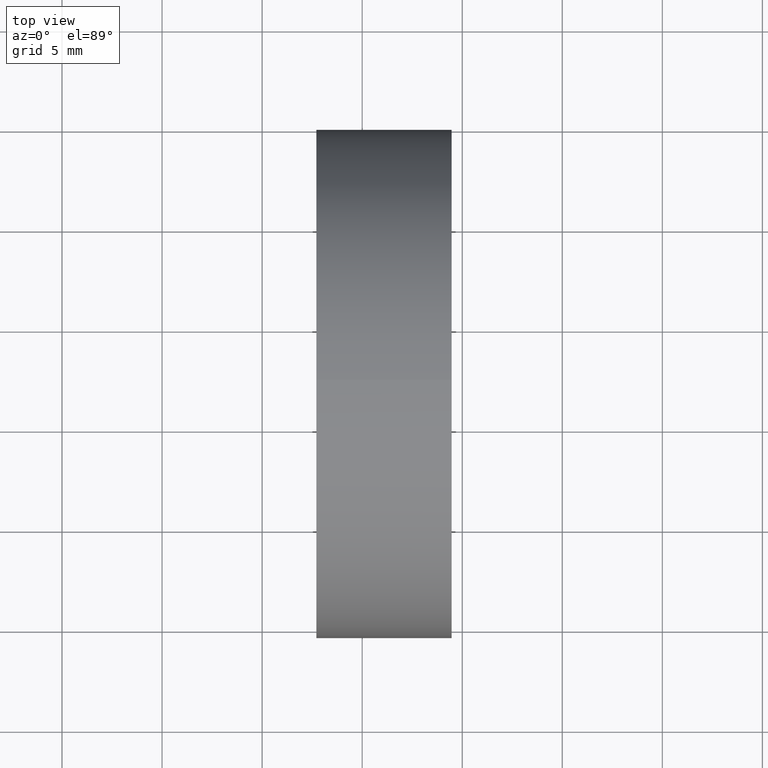
[diagram: clean part render]
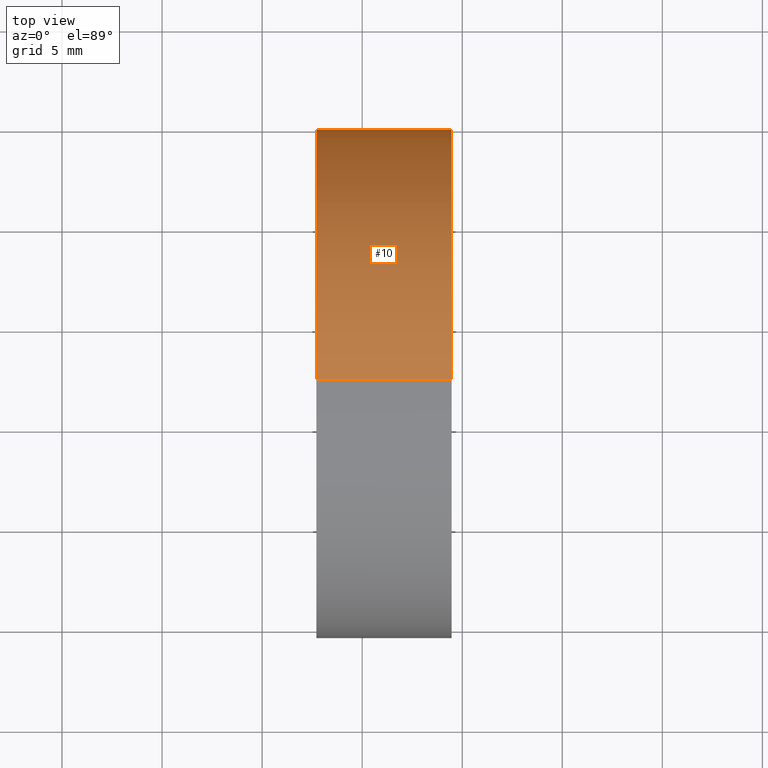
[diagram: same view with one face highlighted and labeled with its STEP entity id]
A machine part, top view. The second image highlights one B-rep face of the part: STEP entity #10.
In plain terms, the highlighted cylindrical surface (partial cylindrical patch) has radius 12.7 mm, axis along (-1, -0, -0).
Its self-contained STEP definition (entity closure, byte-faithful):
#10 = ADVANCED_FACE ( 'NONE', ( #160 ), #68, .T. ) ;
#12 = VECTOR ( 'NONE', #146, 1000.000000000000000 ) ;
#24 = CARTESIAN_POINT ( 'NONE',  ( 92.70881702839177800, 52.17808229838991700, 0.0000000000000000000 ) ) ;
#25 = EDGE_CURVE ( 'NONE', #31, #38, #207, .T. ) ;
#26 = DIRECTION ( 'NONE',  ( -1.000000000000000000, -0.0000000000000000000, -0.0000000000000000000 ) ) ;
#30 = LINE ( 'NONE', #131, #216 ) ;
#31 = VERTEX_POINT ( 'NONE', #110 ) ;
#32 = CARTESIAN_POINT ( 'NONE',  ( 84.89972222827364600, 52.17808229838991700, 0.0000000000000000000 ) ) ;
#38 = VERTEX_POINT ( 'NONE', #40 ) ;
#40 = CARTESIAN_POINT ( 'NONE',  ( 99.47207090832816300, 64.87808229838989900, 1.555301434917137200E-015 ) ) ;
#41 = CARTESIAN_POINT ( 'NONE',  ( 99.47207090832816300, 52.17808229838991700, 0.0000000000000000000 ) ) ;
#47 = ORIENTED_EDGE ( 'NONE', *, *, #25, .T. ) ;
#50 = ORIENTED_EDGE ( 'NONE', *, *, #141, .F. ) ;
#54 = LINE ( 'NONE', #70, #12 ) ;
#65 = CIRCLE ( 'NONE', #80, 12.69999999999999600 ) ;
#66 = VERTEX_POINT ( 'NONE', #185 ) ;
#68 = CYLINDRICAL_SURFACE ( 'NONE', #165, 12.69999999999999600 ) ;
#70 = CARTESIAN_POINT ( 'NONE',  ( 84.89972222827364600, 52.17808229838991700, 12.69999999999999600 ) ) ;
#75 = CARTESIAN_POINT ( 'NONE',  ( 92.70881702839177800, 52.17808229838991700, 0.0000000000000000000 ) ) ;
#78 = DIRECTION ( 'NONE',  ( -1.000000000000000000, -0.0000000000000000000, -0.0000000000000000000 ) ) ;
#80 = AXIS2_PLACEMENT_3D ( 'NONE', #75, #94, #222 ) ;
#82 = VERTEX_POINT ( 'NONE', #97 ) ;
#84 = ORIENTED_EDGE ( 'NONE', *, *, #217, .T. ) ;
#91 = AXIS2_PLACEMENT_3D ( 'NONE', #24, #78, #204 ) ;
#93 = CIRCLE ( 'NONE', #91, 12.69999999999999600 ) ;
#94 = DIRECTION ( 'NONE',  ( -1.000000000000000000, -0.0000000000000000000, -0.0000000000000000000 ) ) ;
#95 = DIRECTION ( 'NONE',  ( -1.000000000000000000, -0.0000000000000000000, -0.0000000000000000000 ) ) ;
#97 = CARTESIAN_POINT ( 'NONE',  ( 92.70881702839177800, 52.17808229838991700, 12.69999999999999600 ) ) ;
#99 = EDGE_LOOP ( 'NONE', ( #84, #198, #112, #147, #50, #47 ) ) ;
#110 = CARTESIAN_POINT ( 'NONE',  ( 99.47207090832816300, 52.17808229838991700, 12.69999999999999600 ) ) ;
#112 = ORIENTED_EDGE ( 'NONE', *, *, #176, .F. ) ;
#113 = DIRECTION ( 'NONE',  ( 0.0000000000000000000, 0.0000000000000000000, 1.000000000000000000 ) ) ;
#121 = EDGE_CURVE ( 'NONE', #82, #161, #65, .T. ) ;
#131 = CARTESIAN_POINT ( 'NONE',  ( 84.89972222827364600, 52.17808229838991700, -12.69999999999999600 ) ) ;
#141 = EDGE_CURVE ( 'NONE', #31, #82, #54, .T. ) ;
#146 = DIRECTION ( 'NONE',  ( -1.000000000000000000, -0.0000000000000000000, -0.0000000000000000000 ) ) ;
#147 = ORIENTED_EDGE ( 'NONE', *, *, #121, .F. ) ;
#160 = FACE_OUTER_BOUND ( 'NONE', #99, .T. ) ;
#161 = VERTEX_POINT ( 'NONE', #219 ) ;
#165 = AXIS2_PLACEMENT_3D ( 'NONE', #32, #197, #215 ) ;
#176 = EDGE_CURVE ( 'NONE', #161, #66, #93, .T. ) ;
#177 = CIRCLE ( 'NONE', #227, 12.69999999999999600 ) ;
#185 = CARTESIAN_POINT ( 'NONE',  ( 92.70881702839177800, 52.17808229838991700, -12.69999999999999600 ) ) ;
#187 = CARTESIAN_POINT ( 'NONE',  ( 99.47207090832816300, 52.17808229838991700, -12.69999999999999600 ) ) ;
#191 = EDGE_CURVE ( 'NONE', #231, #66, #30, .T. ) ;
#197 = DIRECTION ( 'NONE',  ( -1.000000000000000000, -0.0000000000000000000, -0.0000000000000000000 ) ) ;
#198 = ORIENTED_EDGE ( 'NONE', *, *, #191, .T. ) ;
#202 = DIRECTION ( 'NONE',  ( 0.0000000000000000000, 0.0000000000000000000, 1.000000000000000000 ) ) ;
#203 = AXIS2_PLACEMENT_3D ( 'NONE', #41, #95, #113 ) ;
#204 = DIRECTION ( 'NONE',  ( 0.0000000000000000000, 0.0000000000000000000, 1.000000000000000000 ) ) ;
#207 = CIRCLE ( 'NONE', #203, 12.69999999999999600 ) ;
#215 = DIRECTION ( 'NONE',  ( 0.0000000000000000000, 0.0000000000000000000, 1.000000000000000000 ) ) ;
#216 = VECTOR ( 'NONE', #26, 1000.000000000000000 ) ;
#217 = EDGE_CURVE ( 'NONE', #38, #231, #177, .T. ) ;
#219 = CARTESIAN_POINT ( 'NONE',  ( 92.70881702839179200, 64.87808229838989900, 0.0000000000000000000 ) ) ;
#222 = DIRECTION ( 'NONE',  ( 0.0000000000000000000, 0.0000000000000000000, 1.000000000000000000 ) ) ;
#223 = CARTESIAN_POINT ( 'NONE',  ( 99.47207090832816300, 52.17808229838991700, 0.0000000000000000000 ) ) ;
#224 = DIRECTION ( 'NONE',  ( -1.000000000000000000, -0.0000000000000000000, -0.0000000000000000000 ) ) ;
#227 = AXIS2_PLACEMENT_3D ( 'NONE', #223, #224, #202 ) ;
#231 = VERTEX_POINT ( 'NONE', #187 ) ;